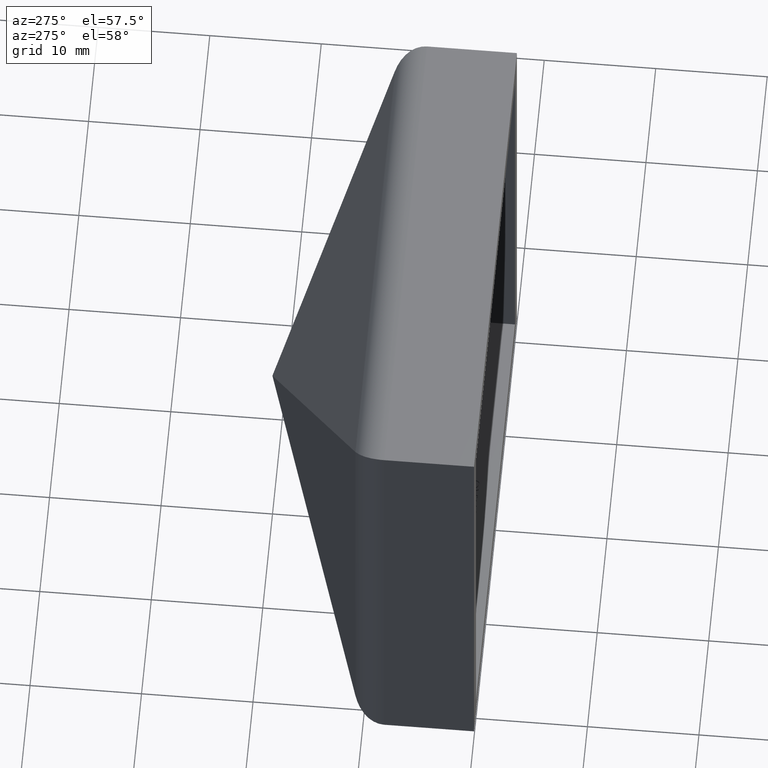
[diagram: clean part render]
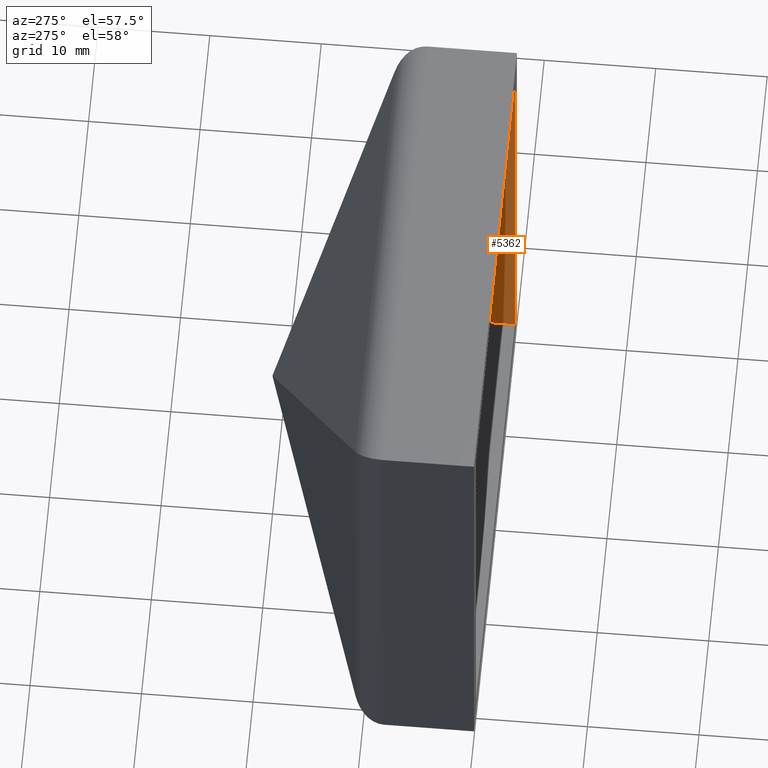
[diagram: same view with one face highlighted and labeled with its STEP entity id]
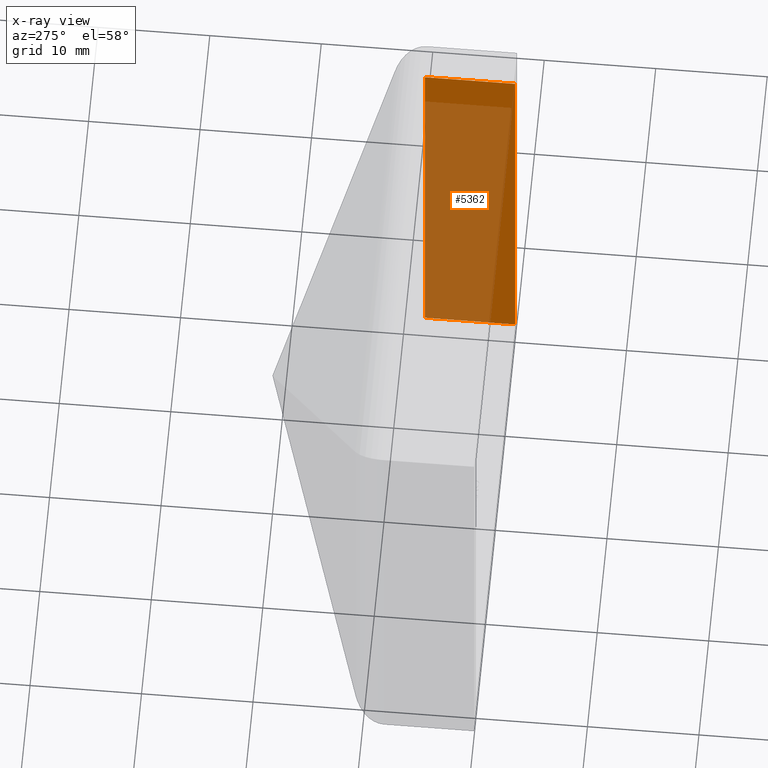
[diagram: x-ray of the same camera — body ghosted, the highlighted face saturated]
A machine part, auxiliary view. The second image highlights one B-rep face of the part: STEP entity #5362.
The next image is the same camera in x-ray: the body ghosted, the highlighted face saturated — about 76% of this face is hidden behind the body in this view.
In plain terms, the highlighted planar face has unit normal (-1, 0, 0).
Its self-contained STEP definition (entity closure, byte-faithful):
#250 = LINE ( 'NONE', #898, #4968 ) ;
#282 = LINE ( 'NONE', #1489, #10395 ) ;
#398 = LINE ( 'NONE', #8595, #6066 ) ;
#873 = CARTESIAN_POINT ( 'NONE',  ( 20.00000000000000000, 0.0000000000000000000, 19.99999999999999600 ) ) ;
#898 = CARTESIAN_POINT ( 'NONE',  ( 19.99999999999998900, 8.069048484575166200, -22.00000000000000000 ) ) ;
#1311 = VERTEX_POINT ( 'NONE', #8889 ) ;
#1432 = EDGE_CURVE ( 'NONE', #8215, #1311, #282, .T. ) ;
#1489 = CARTESIAN_POINT ( 'NONE',  ( 19.99999999999998900, 25.00000000000000000, -19.99999999999999600 ) ) ;
#1529 = DIRECTION ( 'NONE',  ( 0.0000000000000000000, -1.000000000000000000, 0.0000000000000000000 ) ) ;
#2444 = AXIS2_PLACEMENT_3D ( 'NONE', #11223, #6045, #8291 ) ;
#2607 = EDGE_CURVE ( 'NONE', #7557, #1311, #398, .T. ) ;
#3364 = PLANE ( 'NONE',  #2444 ) ;
#3753 = VECTOR ( 'NONE', #7582, 1000.000000000000000 ) ;
#4373 = FACE_OUTER_BOUND ( 'NONE', #10097, .T. ) ;
#4968 = VECTOR ( 'NONE', #10604, 1000.000000000000000 ) ;
#5117 = VERTEX_POINT ( 'NONE', #10749 ) ;
#5362 = ADVANCED_FACE ( 'NONE', ( #4373 ), #3364, .T. ) ;
#6045 = DIRECTION ( 'NONE',  ( -1.000000000000000000, 0.0000000000000000000, 2.365532012695646200E-016 ) ) ;
#6066 = VECTOR ( 'NONE', #9602, 1000.000000000000000 ) ;
#6957 = LINE ( 'NONE', #10585, #3753 ) ;
#7557 = VERTEX_POINT ( 'NONE', #873 ) ;
#7582 = DIRECTION ( 'NONE',  ( 0.0000000000000000000, -1.000000000000000000, 0.0000000000000000000 ) ) ;
#8215 = VERTEX_POINT ( 'NONE', #10699 ) ;
#8291 = DIRECTION ( 'NONE',  ( 2.365532012695646200E-016, 0.0000000000000000000, 1.000000000000000000 ) ) ;
#8533 = EDGE_CURVE ( 'NONE', #8215, #5117, #250, .T. ) ;
#8595 = CARTESIAN_POINT ( 'NONE',  ( 19.99999999999998900, 0.0000000000000000000, -22.00000000000000000 ) ) ;
#8889 = CARTESIAN_POINT ( 'NONE',  ( 19.99999999999998900, 0.0000000000000000000, -19.99999999999999600 ) ) ;
#9347 = EDGE_CURVE ( 'NONE', #5117, #7557, #6957, .T. ) ;
#9602 = DIRECTION ( 'NONE',  ( -2.365532012695646200E-016, 0.0000000000000000000, -1.000000000000000000 ) ) ;
#9683 = ORIENTED_EDGE ( 'NONE', *, *, #9347, .F. ) ;
#10097 = EDGE_LOOP ( 'NONE', ( #11774, #12193, #12585, #9683 ) ) ;
#10395 = VECTOR ( 'NONE', #1529, 1000.000000000000000 ) ;
#10585 = CARTESIAN_POINT ( 'NONE',  ( 20.00000000000000000, 25.00000000000000000, 19.99999999999999600 ) ) ;
#10604 = DIRECTION ( 'NONE',  ( 2.365532012695646200E-016, 0.0000000000000000000, 1.000000000000000000 ) ) ;
#10699 = CARTESIAN_POINT ( 'NONE',  ( 19.99999999999998900, 8.069048484575166200, -20.00000000000000000 ) ) ;
#10749 = CARTESIAN_POINT ( 'NONE',  ( 19.99999999999999600, 8.069048484575164400, 19.99999999999999600 ) ) ;
#11223 = CARTESIAN_POINT ( 'NONE',  ( 19.99999999999998900, 25.00000000000000000, -22.00000000000000000 ) ) ;
#11774 = ORIENTED_EDGE ( 'NONE', *, *, #8533, .F. ) ;
#12193 = ORIENTED_EDGE ( 'NONE', *, *, #1432, .T. ) ;
#12585 = ORIENTED_EDGE ( 'NONE', *, *, #2607, .F. ) ;